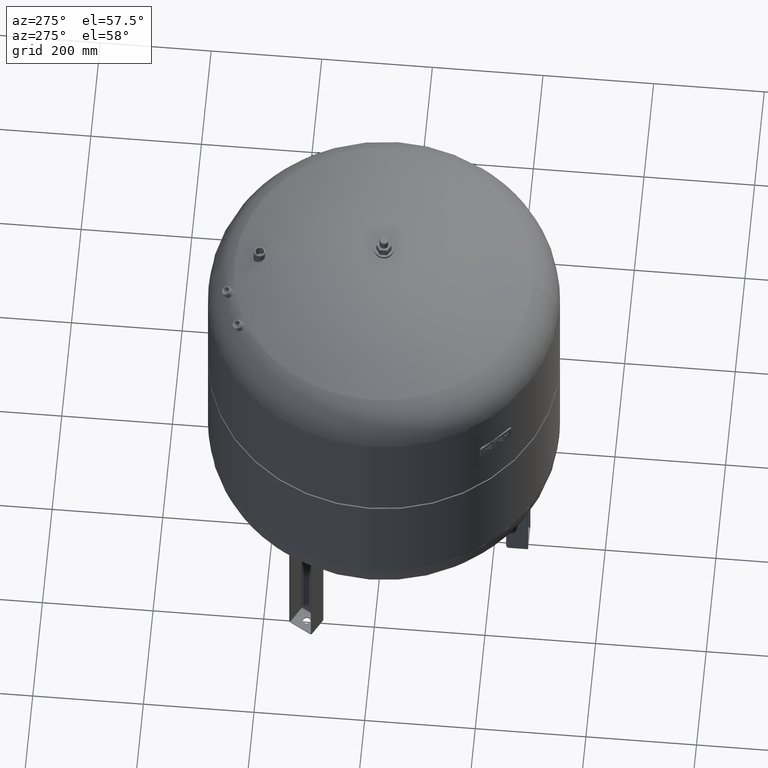
[diagram: clean part render]
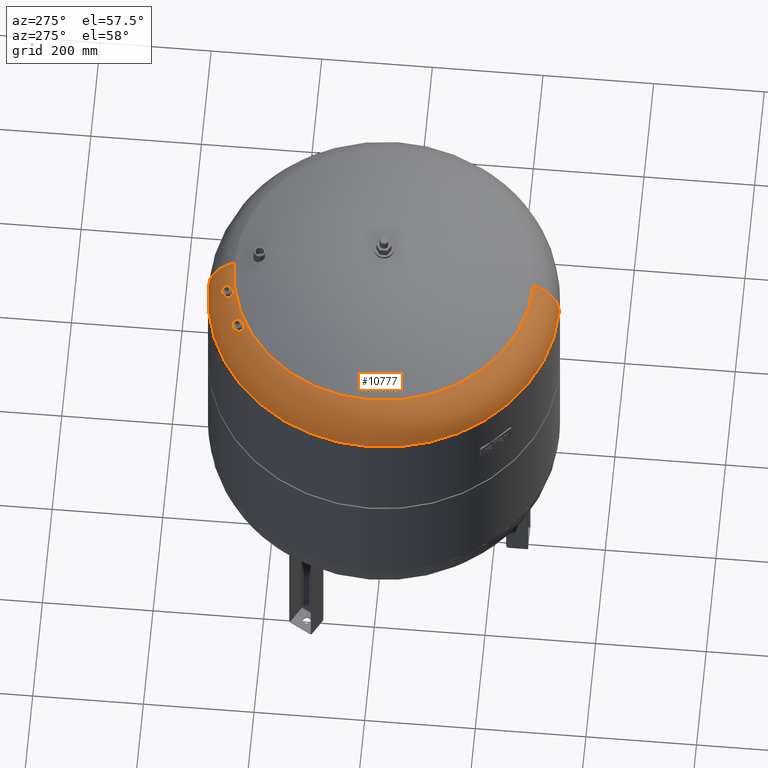
[diagram: same view with one face highlighted and labeled with its STEP entity id]
A machine part, auxiliary view. The second image highlights one B-rep face of the part: STEP entity #10777.
In plain terms, the highlighted toroidal blend (fillet) surface has major radius 218 mm and minor (blend) radius 99 mm.
Its self-contained STEP definition (entity closure, byte-faithful):
#10319=CARTESIAN_POINT('',(-128.840872820130980,256.751013910837000,838.975197680877390));
#10320=VERTEX_POINT('',#10319);
#10336=CARTESIAN_POINT('',(-130.509911073430660,241.457206564656790,849.554803462125620));
#10337=VERTEX_POINT('',#10336);
#10344=CARTESIAN_POINT('',(-126.327124967881660,242.672149214953950,850.163665233574080));
#10345=VERTEX_POINT('',#10344);
#10346=CARTESIAN_POINT('',(-130.509911073430660,241.457206564656790,849.554803462125620));
#10347=CARTESIAN_POINT('',(-130.347829069080860,241.470023670923520,849.600496035453030));
#10348=CARTESIAN_POINT('',(-130.185218493291840,241.486762397547010,849.643765149796540));
#10349=CARTESIAN_POINT('',(-129.067940489375730,241.628552679199540,849.923505681807570));
#10350=CARTESIAN_POINT('',(-128.115335255873990,241.883270579223700,850.074607113222780));
#10351=CARTESIAN_POINT('',(-126.904917249702420,242.386919963441390,850.153924694745680));
#10352=CARTESIAN_POINT('',(-126.612934696719140,242.523366087394040,850.163665233574080));
#10353=CARTESIAN_POINT('',(-126.327124967881660,242.672149214953950,850.163665233574080));
#10354=B_SPLINE_CURVE_WITH_KNOTS('',3,(#10346,#10347,#10348,#10349,#10350,#10351,#10352,#10353),.UNSPECIFIED.,.F.,.U.,(4,2,2,4),(54.186803261261318,54.694562524110509,57.668165065733376,58.634815251323765),.UNSPECIFIED.);
#10355=EDGE_CURVE('',#10337,#10345,#10354,.T.);
#10357=CARTESIAN_POINT('',(-126.327124967881690,242.672149214954000,850.163665233574190));
#10358=CARTESIAN_POINT('',(-125.470442318313540,243.118109975098490,850.163665233574080));
#10359=CARTESIAN_POINT('',(-124.676351442076410,243.671356780208410,850.076353810763860));
#10360=CARTESIAN_POINT('',(-123.188376078432680,245.024963319039700,849.710556774520460));
#10361=CARTESIAN_POINT('',(-122.528669496874640,245.836015487352230,849.413712695407300));
#10362=CARTESIAN_POINT('',(-121.444590192281450,247.694171575578420,848.574210842170710));
#10363=CARTESIAN_POINT('',(-121.077562747586700,248.738734458002650,848.011360648118280));
#10364=CARTESIAN_POINT('',(-120.803390364484780,250.766381221251460,846.728520345458950));
#10365=CARTESIAN_POINT('',(-120.881922345354600,251.730427174642780,846.027500606619360));
#10366=CARTESIAN_POINT('',(-121.459121479574960,253.526250728008020,844.519615989956950));
#10367=CARTESIAN_POINT('',(-121.968369350765940,254.334074388721660,843.724146292701680));
#10368=CARTESIAN_POINT('',(-123.370181919408210,255.661369172484880,842.155728169121630));
#10369=CARTESIAN_POINT('',(-124.258364528796990,256.162633181814730,841.397710168555360));
#10370=CARTESIAN_POINT('',(-126.225992316080150,256.752729418491010,840.101130082195940));
#10371=CARTESIAN_POINT('',(-127.273568748568950,256.862485468984180,839.561644526988860));
#10372=CARTESIAN_POINT('',(-128.524825581559530,256.782231542025270,839.086439259639520));
#10373=CARTESIAN_POINT('',(-128.682649727432530,256.768450975520240,839.029426521467600));
#10374=CARTESIAN_POINT('',(-128.840872820130980,256.751013910837000,838.975197680877390));
#10375=B_SPLINE_CURVE_WITH_KNOTS('',3,(#10357,#10358,#10359,#10360,#10361,#10362,#10363,#10364,#10365,#10366,#10367,#10368,#10369,#10370,#10371,#10372,#10373,#10374),.UNSPECIFIED.,.F.,.U.,(4,2,2,2,2,2,2,2,4),(0.0,2.897425659950178,6.133593550374902,9.824934535676666,13.376951263863335,17.066849193133116,20.835792803581985,24.352748855101101,24.858291827381588),.UNSPECIFIED.);
#10376=EDGE_CURVE('',#10345,#10320,#10375,.T.);
#10523=CARTESIAN_POINT('',(-60.346957044014857,281.457532308566900,838.393076219328120));
#10524=VERTEX_POINT('',#10523);
#10540=CARTESIAN_POINT('',(-61.207919145398719,266.841081380609860,850.036596914957040));
#10541=VERTEX_POINT('',#10540);
#10548=CARTESIAN_POINT('',(-59.214458634532747,267.099162102532200,850.163665233574190));
#10549=VERTEX_POINT('',#10548);
#10550=CARTESIAN_POINT('',(-61.207919145398719,266.841081380609860,850.036596914957040));
#10551=CARTESIAN_POINT('',(-60.988059442968797,266.849601155538440,850.064450137007950));
#10552=CARTESIAN_POINT('',(-60.767651598868774,266.864707612120920,850.087791029364100));
#10553=CARTESIAN_POINT('',(-60.100042918366285,266.930497282891110,850.144600504483150));
#10554=CARTESIAN_POINT('',(-59.654623871554307,267.001579818803580,850.163665233574190));
#10555=CARTESIAN_POINT('',(-59.214458634532747,267.099162102532200,850.163665233574190));
#10556=B_SPLINE_CURVE_WITH_KNOTS('',3,(#10550,#10551,#10552,#10553,#10554,#10555),.UNSPECIFIED.,.F.,.U.,(4,2,4),(56.629717400369202,57.296891473211829,58.649448178795552),.UNSPECIFIED.);
#10557=EDGE_CURVE('',#10541,#10549,#10556,.T.);
#10559=CARTESIAN_POINT('',(-59.214458634532761,267.099162102532260,850.163665233574310));
#10560=CARTESIAN_POINT('',(-58.096601139005088,267.346985142886070,850.163665233574190));
#10561=CARTESIAN_POINT('',(-57.026249642883556,267.762968874979660,850.041070088309430));
#10562=CARTESIAN_POINT('',(-55.063531395376557,268.899880769270000,849.551515989032050));
#10563=CARTESIAN_POINT('',(-54.194913239227191,269.617851306161240,849.182507619254690));
#10564=CARTESIAN_POINT('',(-52.767531048061500,271.287440458997650,848.207083239948590));
#10565=CARTESIAN_POINT('',(-52.239123226203787,272.230234915826260,847.600703639109040));
#10566=CARTESIAN_POINT('',(-51.642013263051467,274.162153814242400,846.236121706873630));
#10567=CARTESIAN_POINT('',(-51.573027926992133,275.130854852887580,845.493618875347470));
#10568=CARTESIAN_POINT('',(-51.893691759924579,276.996216485308760,843.938249600972310));
#10569=CARTESIAN_POINT('',(-52.290488072478368,277.873174496368280,843.138869703054870));
#10570=CARTESIAN_POINT('',(-53.516702648289439,279.413853007545240,841.596812889859850));
#10571=CARTESIAN_POINT('',(-54.343830388630884,280.059649421011040,840.869339442343290));
#10572=CARTESIAN_POINT('',(-56.215111641756891,280.966009792227450,839.688604565501460));
#10573=CARTESIAN_POINT('',(-57.213131004380493,281.253615705705440,839.223493858465420));
#10574=CARTESIAN_POINT('',(-58.953780770011406,281.473166969060170,838.665780659953270));
#10575=CARTESIAN_POINT('',(-59.647235746936637,281.496129093900440,838.501566413434940));
#10576=CARTESIAN_POINT('',(-60.346957044014857,281.457532308566900,838.393076219328120));
#10577=B_SPLINE_CURVE_WITH_KNOTS('',3,(#10559,#10560,#10561,#10562,#10563,#10564,#10565,#10566,#10567,#10568,#10569,#10570,#10571,#10572,#10573,#10574,#10575,#10576),.UNSPECIFIED.,.F.,.U.,(4,2,2,2,2,2,2,2,4),(0.0,3.434995597775711,6.961320872720215,10.644678123938185,14.277670970303626,17.990955944882408,21.777853030061451,25.163043194737071,27.300750102973481),.UNSPECIFIED.);
#10578=EDGE_CURVE('',#10549,#10524,#10577,.T.);
#10628=CARTESIAN_POINT('',(-317.000000000000060,4.952455E-014,768.240550627371480));
#10629=VERTEX_POINT('',#10628);
#10653=CARTESIAN_POINT('',(-3.882002E-014,-317.0,768.240550627371140));
#10654=VERTEX_POINT('',#10653);
#10662=CARTESIAN_POINT('',(-1.556097E-014,4.952455E-014,768.240550627371360));
#10663=DIRECTION('',(0.0,0.0,-1.0));
#10664=DIRECTION('',(-1.0,0.0,0.0));
#10665=AXIS2_PLACEMENT_3D('',#10662,#10663,#10664);
#10666=CIRCLE('',#10665,317.000000000000060);
#10667=EDGE_CURVE('',#10654,#10629,#10666,.T.);
#10672=CARTESIAN_POINT('',(0.0,4.952455E-014,768.240550627371360));
#10673=DIRECTION('',(-9.619823E-017,3.061617E-016,-1.0));
#10674=DIRECTION('',(0.0,1.0,0.0));
#10675=AXIS2_PLACEMENT_3D('',#10672,#10673,#10674);
#10676=TOROIDAL_SURFACE('',#10675,218.0,99.0);
#10677=CARTESIAN_POINT('',(1.555323E-030,317.000000000000110,768.240550627371590));
#10678=VERTEX_POINT('',#10677);
#10679=CARTESIAN_POINT('',(8.065826E-015,270.639024390243830,852.086439681297630));
#10680=VERTEX_POINT('',#10679);
#10681=CARTESIAN_POINT('',(0.0,218.000000000000060,768.240550627371480));
#10682=DIRECTION('',(1.0,0.0,0.0));
#10683=DIRECTION('',(0.0,1.0,0.0));
#10684=AXIS2_PLACEMENT_3D('',#10681,#10682,#10683);
#10685=CIRCLE('',#10684,99.0);
#10686=EDGE_CURVE('',#10678,#10680,#10685,.T.);
#10687=ORIENTED_EDGE('',*,*,#10686,.F.);
#10688=CARTESIAN_POINT('',(-1.556097E-014,4.952455E-014,768.240550627371360));
#10689=DIRECTION('',(0.0,0.0,-1.0));
#10690=DIRECTION('',(-1.0,0.0,0.0));
#10691=AXIS2_PLACEMENT_3D('',#10688,#10689,#10690);
#10692=CIRCLE('',#10691,317.000000000000060);
#10693=EDGE_CURVE('',#10629,#10678,#10692,.T.);
#10694=ORIENTED_EDGE('',*,*,#10693,.F.);
#10695=ORIENTED_EDGE('',*,*,#10667,.F.);
#10696=CARTESIAN_POINT('',(-2.507680E-014,-270.639024390243830,852.086439681297410));
#10697=VERTEX_POINT('',#10696);
#10698=CARTESIAN_POINT('',(-2.669642E-014,-217.999999999999940,768.240550627371250));
#10699=DIRECTION('',(-1.0,0.0,0.0));
#10700=DIRECTION('',(0.0,-1.0,0.0));
#10701=AXIS2_PLACEMENT_3D('',#10698,#10699,#10700);
#10702=CIRCLE('',#10701,99.0);
#10703=EDGE_CURVE('',#10654,#10697,#10702,.T.);
#10704=ORIENTED_EDGE('',*,*,#10703,.T.);
#10705=CARTESIAN_POINT('',(-270.639024390243830,2.385415E-014,852.086439681297630));
#10706=VERTEX_POINT('',#10705);
#10707=CARTESIAN_POINT('',(-7.495146E-015,2.385415E-014,852.086439681297520));
#10708=DIRECTION('',(0.0,0.0,-1.0));
#10709=DIRECTION('',(-1.0,0.0,0.0));
#10710=AXIS2_PLACEMENT_3D('',#10707,#10708,#10709);
#10711=CIRCLE('',#10710,270.639024390243830);
#10712=EDGE_CURVE('',#10697,#10706,#10711,.T.);
#10713=ORIENTED_EDGE('',*,*,#10712,.T.);
#10714=CARTESIAN_POINT('',(-7.495146E-015,2.385415E-014,852.086439681297520));
#10715=DIRECTION('',(0.0,0.0,-1.0));
#10716=DIRECTION('',(-1.0,0.0,0.0));
#10717=AXIS2_PLACEMENT_3D('',#10714,#10715,#10716);
#10718=CIRCLE('',#10717,270.639024390243830);
#10719=EDGE_CURVE('',#10706,#10680,#10718,.T.);
#10720=ORIENTED_EDGE('',*,*,#10719,.T.);
#10721=EDGE_LOOP('',(#10687,#10694,#10695,#10704,#10713,#10720));
#10722=FACE_OUTER_BOUND('',#10721,.T.);
#10723=ORIENTED_EDGE('',*,*,#10578,.F.);
#10724=ORIENTED_EDGE('',*,*,#10557,.F.);
#10725=CARTESIAN_POINT('',(-60.346957044014857,281.457532308566900,838.393076219328120));
#10726=CARTESIAN_POINT('',(-60.770686411662481,281.434159300612290,838.327377945548510));
#10727=CARTESIAN_POINT('',(-61.196711479788050,281.388205123924650,838.282102336436760));
#10728=CARTESIAN_POINT('',(-62.728227973951164,281.141432344714990,838.195490954969050));
#10729=CARTESIAN_POINT('',(-63.806873350002050,280.814407969856060,838.278093306182310));
#10730=CARTESIAN_POINT('',(-65.871454371351632,279.863742011020120,838.735989192898610));
#10731=CARTESIAN_POINT('',(-66.823939563482853,279.232274919428510,839.125072425053190));
#10732=CARTESIAN_POINT('',(-68.404050468636271,277.752254650573380,840.148539052417050));
#10733=CARTESIAN_POINT('',(-69.016968777225230,276.916549970906540,840.773692344777150));
#10734=CARTESIAN_POINT('',(-69.834123174038268,275.116372395342130,842.180709486489830));
#10735=CARTESIAN_POINT('',(-70.021109235660077,274.163808541563180,842.954221796439240));
#10736=CARTESIAN_POINT('',(-69.917721105974380,272.269533040468270,844.532463458038360));
#10737=CARTESIAN_POINT('',(-69.623909047717831,271.344807955148380,845.323213677423380));
#10738=CARTESIAN_POINT('',(-68.582830467673531,269.662603879723970,846.807235861387200));
#10739=CARTESIAN_POINT('',(-67.848167719587224,268.921503165732420,847.486101626055870));
#10740=CARTESIAN_POINT('',(-66.056195850657886,267.750050853629200,848.637874670462790));
#10741=CARTESIAN_POINT('',(-65.026789250653238,267.323349235351260,849.104975469649620));
#10742=CARTESIAN_POINT('',(-63.038489096135407,266.885236124290940,849.724587470061690));
#10743=CARTESIAN_POINT('',(-62.127993108583588,266.805427629616190,849.920036107694160));
#10744=CARTESIAN_POINT('',(-61.207919145398719,266.841081380609860,850.036596914957040));
#10745=B_SPLINE_CURVE_WITH_KNOTS('',3,(#10725,#10726,#10727,#10728,#10729,#10730,#10731,#10732,#10733,#10734,#10735,#10736,#10737,#10738,#10739,#10740,#10741,#10742,#10743,#10744),.UNSPECIFIED.,.F.,.U.,(4,2,2,2,2,2,2,2,2,4),(27.300750102973481,28.595278653448172,31.962239401535943,35.551512912075268,39.145637214847170,42.828744148375698,46.545588426619325,50.245267753948575,53.837711923466600,56.629717400369202),.UNSPECIFIED.);
#10746=EDGE_CURVE('',#10524,#10541,#10745,.T.);
#10747=ORIENTED_EDGE('',*,*,#10746,.F.);
#10748=EDGE_LOOP('',(#10723,#10724,#10747));
#10749=FACE_BOUND('',#10748,.T.);
#10750=ORIENTED_EDGE('',*,*,#10376,.F.);
#10751=ORIENTED_EDGE('',*,*,#10355,.F.);
#10752=CARTESIAN_POINT('',(-128.840872820130980,256.751013910837000,838.975197680877390));
#10753=CARTESIAN_POINT('',(-129.646234560721670,256.662258568462050,838.699170757732870));
#10754=CARTESIAN_POINT('',(-130.461968163242350,256.478835540636850,838.495353286373760));
#10755=CARTESIAN_POINT('',(-132.140567932593770,255.907414547028370,838.239444574340270));
#10756=CARTESIAN_POINT('',(-132.988560289328030,255.507034057732170,838.204439657569760));
#10757=CARTESIAN_POINT('',(-134.616972517936260,254.501377301455620,838.338411815327280));
#10758=CARTESIAN_POINT('',(-135.378392531131910,253.894039105854120,838.517535780340840));
#10759=CARTESIAN_POINT('',(-136.837410366262300,252.396969122239510,839.135955222479650));
#10760=CARTESIAN_POINT('',(-137.471704281617010,251.489852219004830,839.616213034892780));
#10761=CARTESIAN_POINT('',(-138.335915088661040,249.611223068453310,840.777438944322280));
#10762=CARTESIAN_POINT('',(-138.565099385294500,248.656097151022410,841.445288393577580));
#10763=CARTESIAN_POINT('',(-138.601046941074060,246.759831457720910,842.903911282457330));
#10764=CARTESIAN_POINT('',(-138.392870477636560,245.835434729018860,843.686051367316740));
#10765=CARTESIAN_POINT('',(-137.532363589083450,244.147412706526580,845.255146620127110));
#10766=CARTESIAN_POINT('',(-136.878207539059820,243.403702054274110,846.027009502877380));
#10767=CARTESIAN_POINT('',(-135.214702395368020,242.237493512240260,847.433890913544590));
#10768=CARTESIAN_POINT('',(-134.227144671373570,241.823177243895400,848.056325350070670));
#10769=CARTESIAN_POINT('',(-132.298181538985260,241.436084289825740,848.971009321467250));
#10770=CARTESIAN_POINT('',(-131.412227080465670,241.385853300025470,849.300431359057480));
#10771=CARTESIAN_POINT('',(-130.509911073430660,241.457206564656790,849.554803462125620));
#10772=B_SPLINE_CURVE_WITH_KNOTS('',3,(#10752,#10753,#10754,#10755,#10756,#10757,#10758,#10759,#10760,#10761,#10762,#10763,#10764,#10765,#10766,#10767,#10768,#10769,#10770,#10771),.UNSPECIFIED.,.F.,.U.,(4,2,2,2,2,2,2,2,2,4),(24.858291827381588,27.431525362104711,30.233344235880011,33.187752015520786,36.773465651954240,40.301307886535859,43.948690390373351,47.678355762043068,51.360090249985880,54.186803261261318),.UNSPECIFIED.);
#10773=EDGE_CURVE('',#10320,#10337,#10772,.T.);
#10774=ORIENTED_EDGE('',*,*,#10773,.F.);
#10775=EDGE_LOOP('',(#10750,#10751,#10774));
#10776=FACE_BOUND('',#10775,.T.);
#10777=ADVANCED_FACE('',(#10722,#10749,#10776),#10676,.T.);